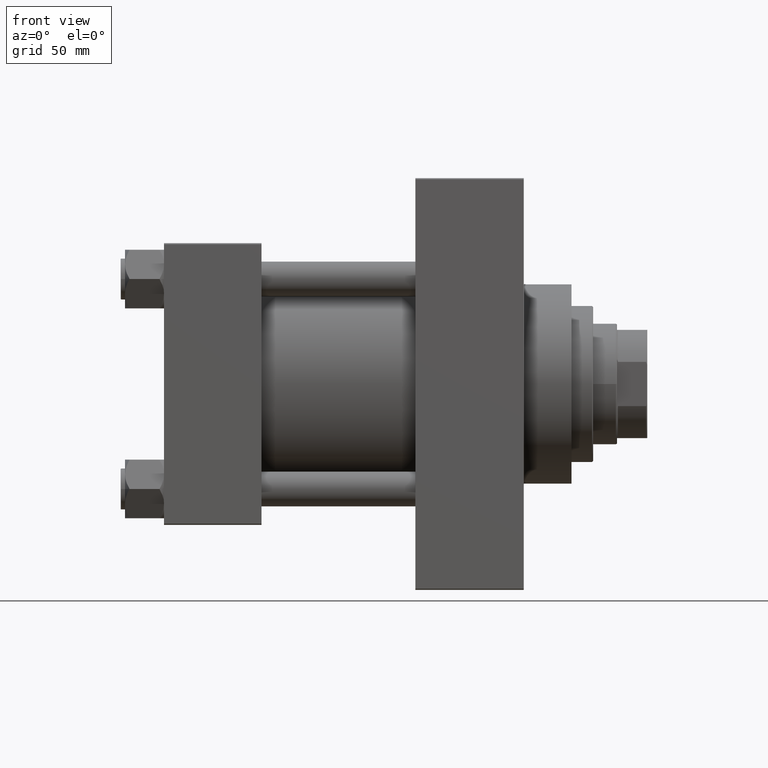
[diagram: clean part render]
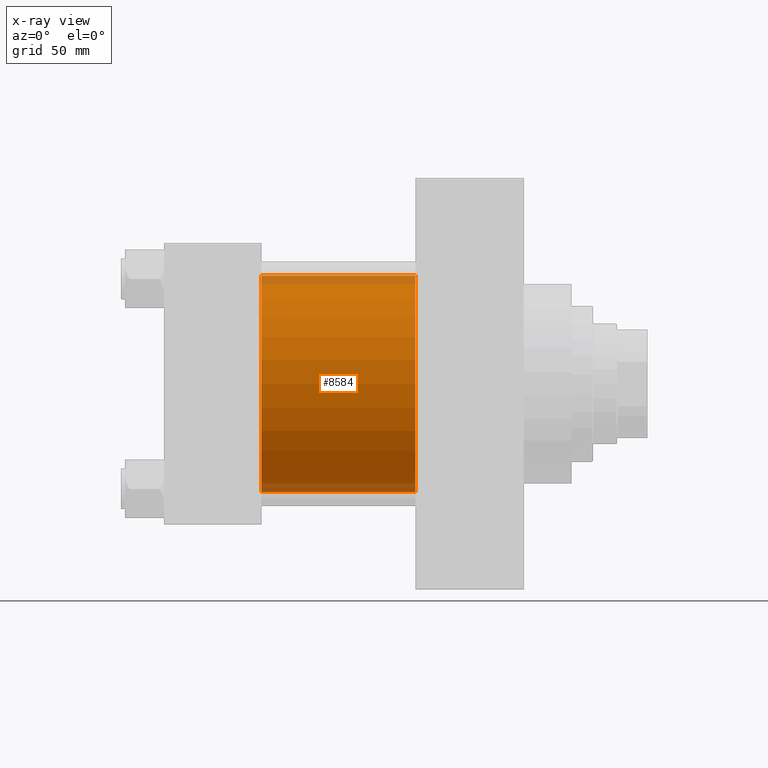
[diagram: x-ray — body ghosted, one internal face saturated and labeled with its STEP entity id]
A machine part, front view, then the same camera in x-ray: the body is ghosted and one INTERNAL B-rep face — a face not visible from any outside direction — is saturated and labeled: STEP entity #8584.
In plain terms, the highlighted cylindrical surface (partial cylindrical patch) has radius 50 mm, axis along (-1, -0, -0).
Its self-contained STEP definition (entity closure, byte-faithful):
#659 = DIRECTION ( 'NONE',  ( 0.000000000000000000, 0.000000000000000000, -1.000000000000000000 ) ) ;
#786 = CARTESIAN_POINT ( 'NONE',  ( 115.9999999999999858, -2.602085213965210642E-15, 50.00000000000000000 ) ) ;
#981 = EDGE_CURVE ( 'NONE', #31590, #37037, #25079, .T. ) ;
#1329 = EDGE_CURVE ( 'NONE', #31590, #43456, #19555, .T. ) ;
#2440 = VECTOR ( 'NONE', #4341, 1000.000000000000000 ) ;
#4341 = DIRECTION ( 'NONE',  ( -1.000000000000000000, -0.000000000000000000, -0.000000000000000000 ) ) ;
#4400 = CARTESIAN_POINT ( 'NONE',  ( 115.9999999999999858, -2.602085213965210642E-15, 50.00000000000000000 ) ) ;
#4630 = ORIENTED_EDGE ( 'NONE', *, *, #981, .T. ) ;
#7862 = ORIENTED_EDGE ( 'NONE', *, *, #30732, .T. ) ;
#8584 = ADVANCED_FACE ( 'NONE', ( #39962 ), #9559, .F. ) ;
#9559 = CYLINDRICAL_SURFACE ( 'NONE', #39106, 50.00000000000000000 ) ;
#10879 = CARTESIAN_POINT ( 'NONE',  ( 45.00000000000000000, 3.521148781771555838E-15, -50.00000000000000000 ) ) ;
#12677 = VECTOR ( 'NONE', #38854, 1000.000000000000000 ) ;
#14336 = VERTEX_POINT ( 'NONE', #10879 ) ;
#15898 = AXIS2_PLACEMENT_3D ( 'NONE', #29681, #22072, #37036 ) ;
#17419 = DIRECTION ( 'NONE',  ( -1.000000000000000000, -0.000000000000000000, -0.000000000000000000 ) ) ;
#17661 = ORIENTED_EDGE ( 'NONE', *, *, #26827, .F. ) ;
#19555 = LINE ( 'NONE', #786, #2440 ) ;
#21143 = CARTESIAN_POINT ( 'NONE',  ( 115.9999999999999858, 3.521148781771555838E-15, -50.00000000000000000 ) ) ;
#21845 = AXIS2_PLACEMENT_3D ( 'NONE', #50048, #39163, #659 ) ;
#22072 = DIRECTION ( 'NONE',  ( 1.000000000000000000, 0.000000000000000000, 0.000000000000000000 ) ) ;
#25079 = CIRCLE ( 'NONE', #21845, 50.00000000000000000 ) ;
#25661 = CARTESIAN_POINT ( 'NONE',  ( 45.00000000000000000, -2.602085213965210642E-15, 50.00000000000000000 ) ) ;
#26827 = EDGE_CURVE ( 'NONE', #43456, #14336, #37732, .T. ) ;
#28084 = CARTESIAN_POINT ( 'NONE',  ( 115.9999999999999858, -2.602085213965210642E-15, 0.000000000000000000 ) ) ;
#29681 = CARTESIAN_POINT ( 'NONE',  ( 45.00000000000000000, -2.602085213965210642E-15, 0.000000000000000000 ) ) ;
#30732 = EDGE_CURVE ( 'NONE', #37037, #14336, #46681, .T. ) ;
#31590 = VERTEX_POINT ( 'NONE', #4400 ) ;
#37036 = DIRECTION ( 'NONE',  ( 0.000000000000000000, 0.000000000000000000, -1.000000000000000000 ) ) ;
#37037 = VERTEX_POINT ( 'NONE', #21143 ) ;
#37732 = CIRCLE ( 'NONE', #15898, 50.00000000000000000 ) ;
#38854 = DIRECTION ( 'NONE',  ( -1.000000000000000000, -0.000000000000000000, -0.000000000000000000 ) ) ;
#39106 = AXIS2_PLACEMENT_3D ( 'NONE', #28084, #17419, #43754 ) ;
#39163 = DIRECTION ( 'NONE',  ( 1.000000000000000000, 0.000000000000000000, 0.000000000000000000 ) ) ;
#39343 = CARTESIAN_POINT ( 'NONE',  ( 115.9999999999999858, 3.521148781771555838E-15, -50.00000000000000000 ) ) ;
#39962 = FACE_OUTER_BOUND ( 'NONE', #46552, .T. ) ;
#43456 = VERTEX_POINT ( 'NONE', #25661 ) ;
#43754 = DIRECTION ( 'NONE',  ( 0.000000000000000000, 0.000000000000000000, 1.000000000000000000 ) ) ;
#45321 = ORIENTED_EDGE ( 'NONE', *, *, #1329, .F. ) ;
#46552 = EDGE_LOOP ( 'NONE', ( #4630, #7862, #17661, #45321 ) ) ;
#46681 = LINE ( 'NONE', #39343, #12677 ) ;
#50048 = CARTESIAN_POINT ( 'NONE',  ( 115.9999999999999858, -2.602085213965210642E-15, 0.000000000000000000 ) ) ;